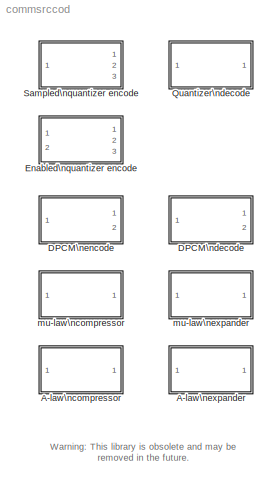
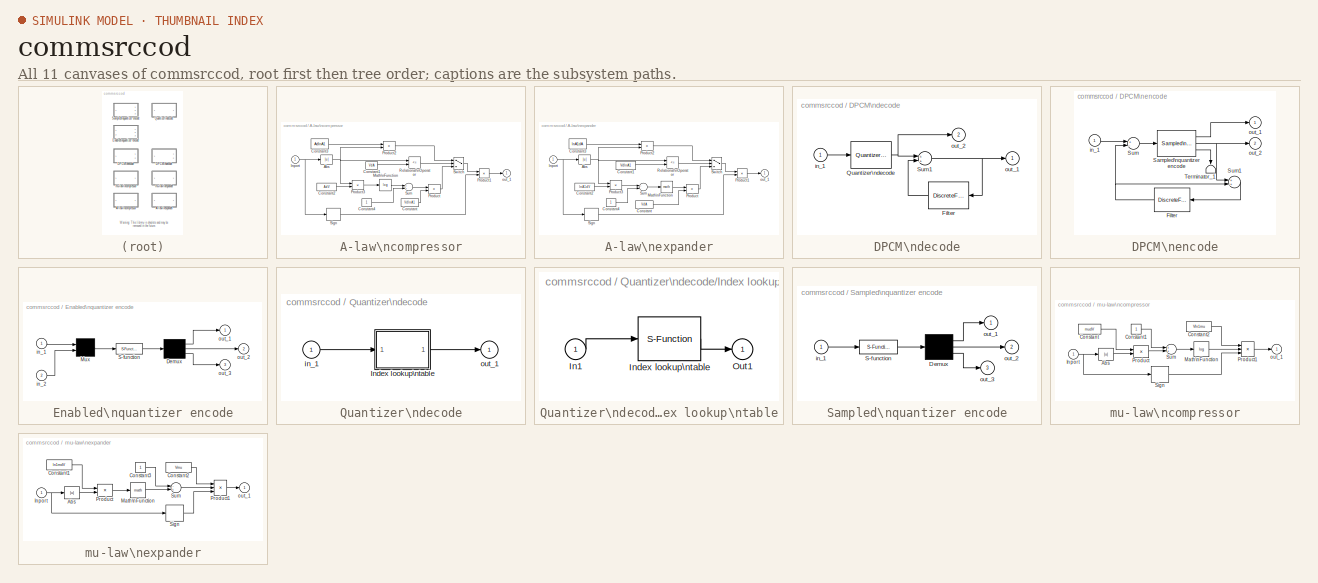
[diagram: thumbnail index - all 11 canvases of the model, root first then tree order]
MODEL commsrccod
KIND library
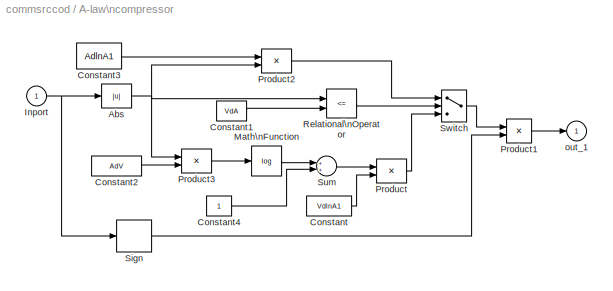
BLOCK [SubSystem] A-law\ncompressor
  MaskCallbackString = |
  MaskDescription = Compress the input signal using A-law compressor. The A-law compressor uses logarithm computation.
  MaskDisplay = disp('A-law\\ncompressor')
  MaskEnableString = on,on
  MaskHelp = This block processes a vector signal. The output has the same length as the input signal. The prevailing value for A is A=87.6.
  MaskIconFrame = on
  MaskIconOpaque = on
  MaskIconRotate = none
  MaskIconUnits = autoscale
  MaskInitialization = lnA1=log(A)+1;AdlnA1=A/lnA1;VdlnA1=V/lnA1;VdA=V/A;AdV=A/V;
  MaskPromptString = A value:|Peak signal magnitude:
  MaskStyleString = edit,edit
  MaskToolTipString = on,on
  MaskTunableValueString = on,on
  MaskType = A-law compressor
  MaskValueString = 87.6|1
  MaskVarAliasString = ,
  MaskVariables = A=@1;V=@2;
  MaskVisibilityString = on,on
  Ports = [1, 1]
  TreatAsAtomicUnit = off
BLOCK [Abs] A-law\ncompressor/Abs
BLOCK [Constant] A-law\ncompressor/Constant
  Value = VdlnA1
BLOCK [Constant] A-law\ncompressor/Constant1
  Value = VdA
BLOCK [Constant] A-law\ncompressor/Constant2
  Value = AdV
BLOCK [Constant] A-law\ncompressor/Constant3
  Value = AdlnA1
BLOCK [Constant] A-law\ncompressor/Constant4
BLOCK [Inport] A-law\ncompressor/Inport
BLOCK [Math] A-law\ncompressor/Math\nFunction
  Operator = log
  Ports = [1, 1]
BLOCK [Product] A-law\ncompressor/Product
  Ports = [2, 1]
BLOCK [Product] A-law\ncompressor/Product1
  Ports = [2, 1]
BLOCK [Product] A-law\ncompressor/Product2
  Ports = [2, 1]
BLOCK [Product] A-law\ncompressor/Product3
  Ports = [2, 1]
BLOCK [RelationalOperator] A-law\ncompressor/Relational\nOperator
  Operator = <=
BLOCK [Signum] A-law\ncompressor/Sign
BLOCK [Sum] A-law\ncompressor/Sum
  Ports = [2, 1]
BLOCK [Switch] A-law\ncompressor/Switch
  Threshold = .2
BLOCK [Outport] A-law\ncompressor/out_1
  InitialOutput = 0
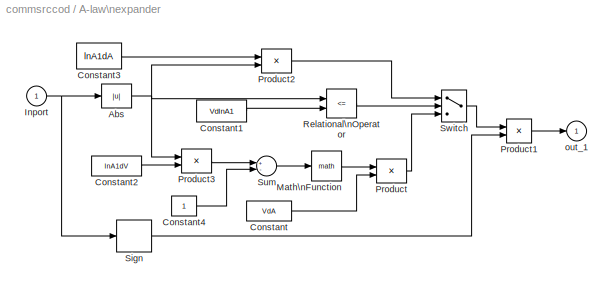
BLOCK [SubSystem] A-law\nexpander
  MaskCallbackString = |
  MaskDescription = Inverse computation of A-law compressor.
  MaskDisplay = disp('A-law\\nexpander')
  MaskEnableString = on,on
  MaskHelp = This block reverses the computation with A-law compressor. The prevailing value for A is A=87.6.
  MaskIconFrame = on
  MaskIconOpaque = on
  MaskIconRotate = none
  MaskIconUnits = autoscale
  MaskInitialization = lnA1=log(A)+1;VdlnA1=V/lnA1;lnA1dA=lnA1/A;lnA1dV=lnA1/V;VdA=V/A;
  MaskPromptString = A value:|Signal peak magnitude:
  MaskStyleString = edit,edit
  MaskToolTipString = on,on
  MaskTunableValueString = on,on
  MaskType = A-law expander
  MaskValueString = 87.6|1
  MaskVarAliasString = ,
  MaskVariables = A=@1;V=@2;
  MaskVisibilityString = on,on
  Ports = [1, 1]
  TreatAsAtomicUnit = off
BLOCK [Abs] A-law\nexpander/Abs
BLOCK [Constant] A-law\nexpander/Constant
  Value = VdA
BLOCK [Constant] A-law\nexpander/Constant1
  Value = VdlnA1
BLOCK [Constant] A-law\nexpander/Constant2
  Value = lnA1dV
BLOCK [Constant] A-law\nexpander/Constant3
  Value = lnA1dA
BLOCK [Constant] A-law\nexpander/Constant4
BLOCK [Inport] A-law\nexpander/Inport
BLOCK [Math] A-law\nexpander/Math\nFunction
  Ports = [1, 1]
BLOCK [Product] A-law\nexpander/Product
  Ports = [2, 1]
BLOCK [Product] A-law\nexpander/Product1
  Ports = [2, 1]
BLOCK [Product] A-law\nexpander/Product2
  Ports = [2, 1]
BLOCK [Product] A-law\nexpander/Product3
  Ports = [2, 1]
BLOCK [RelationalOperator] A-law\nexpander/Relational\nOperator
  Operator = <=
BLOCK [Signum] A-law\nexpander/Sign
BLOCK [Sum] A-law\nexpander/Sum
  Inputs = +-
  Ports = [2, 1]
BLOCK [Switch] A-law\nexpander/Switch
  Threshold = .2
BLOCK [Outport] A-law\nexpander/out_1
  InitialOutput = 0
BLOCK [SubSystem] DPCM\ndecode
  MaskCallbackString = |||
  MaskDescription = Input the DPCM coded index. Output DPCM decodes to the 1st outport and quantization decode to the 2nd outport.
  MaskDisplay = disp('DPCM\\ndecode')
  MaskEnableString = on,on,on,on
  MaskHelp = This block recovers the source code using the DPCM decode method. The parameters in this block should match the parameters in the DPCM encoder.
  MaskIconFrame = on
  MaskIconOpaque = on
  MaskIconRotate = none
  MaskIconUnits = autoscale
  MaskPromptString = Predictor transfer function numerator:|Predictor transfer function denominator:|Quantization codebook:|Sample time (sec):
  MaskStyleString = edit,edit,edit,edit
  MaskToolTipString = on,on,on,on
  MaskTunableValueString = on,on,on,on
  MaskType = DPCM decode
  MaskValueString = [0 .9963]|1|[-.0848 -.029 .0298 .0853]|.1
  MaskVarAliasString = ,,,
  MaskVariables = num=@1;den=@2;codebook=@3;sample_time=@4;
  MaskVisibilityString = on,on,on,on
  Ports = [1, 2]
  TreatAsAtomicUnit = off
BLOCK [DiscreteFilter] DPCM\ndecode/Filter
  Denominator = den
  MaskIconFrame = on
  MaskIconOpaque = on
  MaskIconRotate = none
  MaskIconUnits = autoscale
  Numerator = num
  SampleTime = sample_time
BLOCK [Reference] DPCM\ndecode/Quantizer\ndecode  REF=commsrccod/Quantizer\ndecode
  Ports = [1, 1]
  SourceBlock = commsrccod/Quantizer\ndecode
  SourceType = Scalar quantization decode
  codebook = codebook
BLOCK [Sum] DPCM\ndecode/Sum1
  Ports = [2, 1]
BLOCK [Inport] DPCM\ndecode/in_1
BLOCK [Outport] DPCM\ndecode/out_1
  InitialOutput = 0
BLOCK [Outport] DPCM\ndecode/out_2
  InitialOutput = 0
  Port = 2
BLOCK [SubSystem] DPCM\nencode
  MaskCallbackString = ||||
  MaskDescription = Output the DPCM encoded index to the 1st outport and the quantization recovered value to the 2nd outport.
  MaskDisplay = disp('DPCM\\nencode')
  MaskEnableString = on,on,on,on,on
  MaskHelp = The 1st outport outputs the index of the predictive error. The 2nd outport outputs the predictive error. Use the DPCMOPT function for the FIR filter training. A delta modulation is a special case with the numerator as [0,x], the denominator as 1 for the\\npredictor.
  MaskIconFrame = on
  MaskIconOpaque = on
  MaskIconRotate = none
  MaskIconUnits = autoscale
  MaskPromptString = Predictor numerator:|Predictor denominator:|Quantization partition:|Quantization codebook:|Sample time (sec):
  MaskStyleString = edit,edit,edit,edit,edit
  MaskToolTipString = on,on,on,on,on
  MaskTunableValueString = on,on,on,on,on
  MaskType = DPCM encode
  MaskValueString = [0 .9963]|1|[-.0569 .0004 .0576]|[-.0848 -.029 .0298 .0853]|.1
  MaskVarAliasString = ,,,,
  MaskVariables = num=@1;den=@2;partition=@3;codebook=@4;sample_time=@5;
  MaskVisibilityString = on,on,on,on,on
  Ports = [1, 2]
  TreatAsAtomicUnit = off
BLOCK [DiscreteFilter] DPCM\nencode/Filter
  Denominator = den
  MaskIconFrame = on
  MaskIconOpaque = on
  MaskIconRotate = none
  MaskIconUnits = autoscale
  Numerator = num
  SampleTime = sample_time
BLOCK [Reference] DPCM\nencode/Sampled\nquantizer encode  REF=commsrccod/Sampled\nquantizer encode
  Ports = [1, 3]
  SourceBlock = commsrccod/Sampled\nquantizer encode
  SourceType = Scalar quantization encode
  codebook = codebook
  n = 1
  partition = partition
  sample_time = sample_time
BLOCK [Sum] DPCM\nencode/Sum
  Inputs = +-
  Ports = [2, 1]
BLOCK [Sum] DPCM\nencode/Sum1
  Ports = [2, 1]
BLOCK [Terminator] DPCM\nencode/Terminator_1
BLOCK [Inport] DPCM\nencode/in_1
BLOCK [Outport] DPCM\nencode/out_1
  InitialOutput = 0
BLOCK [Outport] DPCM\nencode/out_2
  InitialOutput = 0
  Port = 2
BLOCK [SubSystem] Enabled\nquantizer encode
  MaskCallbackString = ||
  MaskDescription = Triggered by 2nd input signal, this block quantize an analog signal to (1)digital signal, (2)quantization value, (3)distortion.
  MaskDisplay = plot(0,0,100,100,x,y);disp('Quantizer')
  MaskEnableString = on,on,on
  MaskHelp = This block quantizes the first inport signal into quantization index (1st outport), quantized value (2nd outport), and distortion (3rd outport). This block uses scalar quantization method. The input signal to the 1st inport can be a vector. The operation of this block is enabled by the non-zero signal from the second inport. When the block is not enabled, the block keeps the last output value.
  MaskIconFrame = on
  MaskIconOpaque = on
  MaskIconRotate = none
  MaskIconUnits = autoscale
  MaskInitialization = [x,y]=trigicon(0,25,get_param(gcb,'orientation'),1);\n
  MaskPromptString = Quantization partition:|Quantization codebook:|Input signal vector length:
  MaskStyleString = edit,edit,edit
  MaskToolTipString = on,on,on
  MaskTunableValueString = on,on,on
  MaskType = Scalar quantization encode
  MaskValueString = [-.75 -.25 .25 .75]|[-.825 -.5 0 .5 .825]|2
  MaskVarAliasString = ,,
  MaskVariables = partition=@1;codebook=@2;n=@3;
  MaskVisibilityString = on,on,on
  Ports = [2, 3]
  TreatAsAtomicUnit = off
BLOCK [Demux] Enabled\nquantizer encode/Demux
  Outputs = [n n n]
  Ports = [1, 3]
BLOCK [Mux] Enabled\nquantizer encode/Mux
  Inputs = [n 1]
  Ports = [2, 1]
BLOCK [S-Function] Enabled\nquantizer encode/S-function
  FunctionName = simquan
  Parameters = n, partition, codebook
  Ports = [1, 1]
BLOCK [Inport] Enabled\nquantizer encode/in_1
BLOCK [Inport] Enabled\nquantizer encode/in_2
  Port = 2
BLOCK [Outport] Enabled\nquantizer encode/out_1
  InitialOutput = 0
BLOCK [Outport] Enabled\nquantizer encode/out_2
  InitialOutput = 0
  Port = 2
BLOCK [Outport] Enabled\nquantizer encode/out_3
  InitialOutput = 0
  Port = 3
BLOCK [SubSystem] Quantizer\ndecode
  MaskDescription = Output the value in the given codebook based on the input index value.
  MaskDisplay = disp('Quantizer\\ndecode')
  MaskEnableString = on
  MaskHelp = This block takes the quantized index as input and outputs the quantization value. The output vector size is the same as the input vector size. Inputs 0, 1, ..., N-1 lead to CK(1), CK(2), .. CK(N) output.
  MaskIconFrame = on
  MaskIconOpaque = on
  MaskIconRotate = none
  MaskIconUnits = autoscale
  MaskPromptString = Quantization codebook:
  MaskStyleString = edit
  MaskToolTipString = on
  MaskTunableValueString = on
  MaskType = Scalar quantization decode
  MaskValueString = [-.825 -.5 0, .5 .825]
  MaskVariables = codebook=@1;
  MaskVisibilityString = on
  Ports = [1, 1]
  TreatAsAtomicUnit = off
BLOCK [SubSystem] Quantizer\ndecode/Index lookup\ntable
  MaskDescription = Output one of the values in the look-up table.
  MaskDisplay = disp('Index\\nLookup tb')
  MaskEnableString = on
  MaskHelp = When codebook is a matrix, the block input can only be a scalar. The block output the row with the column index provided in the input. When codebook is a vector, the block output the same length as the input vector. The output is one of the values in codebook with the index provided by the input.
  MaskIconFrame = on
  MaskIconOpaque = on
  MaskIconRotate = none
  MaskIconUnits = autoscale
  MaskInitialization = codebook=@1;
  MaskPromptString = Codebook:
  MaskStyleString = edit
  MaskToolTipString = on
  MaskTunableValueString = on
  MaskType = No-intepret Lookup table
  MaskValueString = codebook
  MaskVisibilityString = on
  Ports = [1, 1]
  TreatAsAtomicUnit = off
BLOCK [Inport] Quantizer\ndecode/Index lookup\ntable/In1
BLOCK [S-Function] Quantizer\ndecode/Index lookup\ntable/Index lookup\ntable
  FunctionName = indxtabl
  Parameters = codebook
  Ports = [1, 1]
BLOCK [Outport] Quantizer\ndecode/Index lookup\ntable/Out1
  InitialOutput = 0
BLOCK [Inport] Quantizer\ndecode/in_1
BLOCK [Outport] Quantizer\ndecode/out_1
  InitialOutput = 0
BLOCK [SubSystem] Sampled\nquantizer encode
  MaskCallbackString = |||
  MaskDescription = Quantize an analog signal to (1)digital signal, (2)quantization value, and (3)distortion at every sample time point.
  MaskDisplay = disp('Scalar\\nquantizer')
  MaskEnableString = on,on,on,on
  MaskHelp = This block converts the input analog signal to digital signal (1st outport) with the quantized value (2nd outport), and distortion (3rd outport) at every sample point. The input signa can be a vector. When the sample time is a two-elements vector, the second element is the offset value. The length of the partition is one less than the length of codebook. Use LLOYDS to optimize the partition and co...<+7ch>
  MaskIconFrame = on
  MaskIconOpaque = on
  MaskIconRotate = none
  MaskIconUnits = autoscale
  MaskPromptString = Quantization partition:|Quantization codebook:|Input signal vector length:|Sample time (sec):
  MaskStyleString = edit,edit,edit,edit
  MaskToolTipString = on,on,on,on
  MaskTunableValueString = on,on,on,on
  MaskType = Scalar quantization encode
  MaskValueString = [-.75 -.25 .25 .75]|[-.825 -.5 0 .5 .825]|2|.1
  MaskVarAliasString = ,,,
  MaskVariables = partition=@1;codebook=@2;n=@3;sample_time=@4;
  MaskVisibilityString = on,on,on,on
  Ports = [1, 3]
  TreatAsAtomicUnit = off
BLOCK [Demux] Sampled\nquantizer encode/Demux
  Outputs = [n n n]
  Ports = [1, 3]
BLOCK [S-Function] Sampled\nquantizer encode/S-function
  FunctionName = simquans
  Parameters = n, partition, codebook,sample_time
  Ports = [1, 1]
BLOCK [Inport] Sampled\nquantizer encode/in_1
BLOCK [Outport] Sampled\nquantizer encode/out_1
  InitialOutput = 0
BLOCK [Outport] Sampled\nquantizer encode/out_2
  InitialOutput = 0
  Port = 2
BLOCK [Outport] Sampled\nquantizer encode/out_3
  InitialOutput = 0
  Port = 3
BLOCK [SubSystem] mu-law\ncompressor
  MaskCallbackString = |
  MaskDescription = Compress the input signal using mu-law compressor. The mu-law compressor uses logarithm computation.
  MaskDisplay = disp('mu-law\\ncompressor')
  MaskEnableString = on,on
  MaskHelp = This block processes a vector signal. The output has the same length as the input signal. The prevailing value is mu=255.
  MaskIconFrame = on
  MaskIconOpaque = on
  MaskIconRotate = none
  MaskIconUnits = autoscale
  MaskInitialization = mudV=mu/V;Vln1mu=V/log(1+mu);
  MaskPromptString = mu value:|Peak signal magnitude:
  MaskStyleString = edit,edit
  MaskToolTipString = on,on
  MaskTunableValueString = on,on
  MaskType = mu-law compressor
  MaskValueString = 255|1
  MaskVarAliasString = ,
  MaskVariables = mu=@1;V=@2;
  MaskVisibilityString = on,on
  Ports = [1, 1]
  TreatAsAtomicUnit = off
BLOCK [Abs] mu-law\ncompressor/Abs
BLOCK [Constant] mu-law\ncompressor/Constant
  Value = mudV
BLOCK [Constant] mu-law\ncompressor/Constant1
BLOCK [Constant] mu-law\ncompressor/Constant2
  Value = Vln1mu
BLOCK [Inport] mu-law\ncompressor/Inport
BLOCK [Math] mu-law\ncompressor/Math\nFunction
  Operator = log
  Ports = [1, 1]
BLOCK [Product] mu-law\ncompressor/Product
  Ports = [2, 1]
BLOCK [Product] mu-law\ncompressor/Product1
  Inputs = 3
  Ports = [3, 1]
BLOCK [Signum] mu-law\ncompressor/Sign
BLOCK [Sum] mu-law\ncompressor/Sum
  Ports = [2, 1]
BLOCK [Outport] mu-law\ncompressor/out_1
  InitialOutput = 0
BLOCK [SubSystem] mu-law\nexpander
  MaskCallbackString = |
  MaskDescription = Inverse computation of mu-law compressor.
  MaskDisplay = disp('mu-law\\nexpander')
  MaskEnableString = on,on
  MaskHelp = This block reverses the computation with mu-law compressor. The prevailing value for mu is mu=255.
  MaskIconFrame = on
  MaskIconOpaque = on
  MaskIconRotate = none
  MaskIconUnits = autoscale
  MaskInitialization = Vmu=V/mu;ln1mdV=log(1+mu)/V;
  MaskPromptString = mu value:|Signal peak magnitude:
  MaskStyleString = edit,edit
  MaskToolTipString = on,on
  MaskTunableValueString = on,on
  MaskType = mu-law expander
  MaskValueString = 255|1
  MaskVarAliasString = ,
  MaskVariables = mu=@1;V=@2;
  MaskVisibilityString = on,on
  Ports = [1, 1]
  TreatAsAtomicUnit = off
BLOCK [Abs] mu-law\nexpander/Abs
BLOCK [Constant] mu-law\nexpander/Constant1
  Value = ln1mdV
BLOCK [Constant] mu-law\nexpander/Constant2
  Value = Vmu
BLOCK [Constant] mu-law\nexpander/Constant3
BLOCK [Inport] mu-law\nexpander/Inport
BLOCK [Math] mu-law\nexpander/Math\nFunction
  Ports = [1, 1]
BLOCK [Product] mu-law\nexpander/Product
  Ports = [2, 1]
BLOCK [Product] mu-law\nexpander/Product1
  Inputs = 3
  Ports = [3, 1]
BLOCK [Signum] mu-law\nexpander/Sign
BLOCK [Sum] mu-law\nexpander/Sum
  Inputs = -+
  Ports = [2, 1]
BLOCK [Outport] mu-law\nexpander/out_1
  InitialOutput = 0
ANNOTATION (root): Warning: This library is obsolete and may be\nremoved in the future.
NET A-law\ncompressor/Abs:1 -> A-law\ncompressor/Product2:2, A-law\ncompressor/Product3:1, A-law\ncompressor/Relational\nOperator:1
LINE A-law\ncompressor/Constant1:1 -> A-law\ncompressor/Relational\nOperator:2
LINE A-law\ncompressor/Constant2:1 -> A-law\ncompressor/Product3:2
LINE A-law\ncompressor/Constant3:1 -> A-law\ncompressor/Product2:1
LINE A-law\ncompressor/Constant4:1 -> A-law\ncompressor/Sum:2
LINE A-law\ncompressor/Constant:1 -> A-law\ncompressor/Product:2
NET A-law\ncompressor/Inport:1 -> A-law\ncompressor/Abs:1, A-law\ncompressor/Sign:1
LINE A-law\ncompressor/Math\nFunction:1 -> A-law\ncompressor/Sum:1
LINE A-law\ncompressor/Product1:1 -> A-law\ncompressor/out_1:1
LINE A-law\ncompressor/Product2:1 -> A-law\ncompressor/Switch:1
LINE A-law\ncompressor/Product3:1 -> A-law\ncompressor/Math\nFunction:1
LINE A-law\ncompressor/Product:1 -> A-law\ncompressor/Switch:3
LINE A-law\ncompressor/Relational\nOperator:1 -> A-law\ncompressor/Switch:2
LINE A-law\ncompressor/Sign:1 -> A-law\ncompressor/Product1:2
LINE A-law\ncompressor/Sum:1 -> A-law\ncompressor/Product:1
LINE A-law\ncompressor/Switch:1 -> A-law\ncompressor/Product1:1
NET A-law\nexpander/Abs:1 -> A-law\nexpander/Product2:2, A-law\nexpander/Product3:1, A-law\nexpander/Relational\nOperator:1
LINE A-law\nexpander/Constant1:1 -> A-law\nexpander/Relational\nOperator:2
LINE A-law\nexpander/Constant2:1 -> A-law\nexpander/Product3:2
LINE A-law\nexpander/Constant3:1 -> A-law\nexpander/Product2:1
LINE A-law\nexpander/Constant4:1 -> A-law\nexpander/Sum:2
LINE A-law\nexpander/Constant:1 -> A-law\nexpander/Product:2
NET A-law\nexpander/Inport:1 -> A-law\nexpander/Abs:1, A-law\nexpander/Sign:1
LINE A-law\nexpander/Math\nFunction:1 -> A-law\nexpander/Product:1
LINE A-law\nexpander/Product1:1 -> A-law\nexpander/out_1:1
LINE A-law\nexpander/Product2:1 -> A-law\nexpander/Switch:1
LINE A-law\nexpander/Product3:1 -> A-law\nexpander/Sum:1
LINE A-law\nexpander/Product:1 -> A-law\nexpander/Switch:3
LINE A-law\nexpander/Relational\nOperator:1 -> A-law\nexpander/Switch:2
LINE A-law\nexpander/Sign:1 -> A-law\nexpander/Product1:2
LINE A-law\nexpander/Sum:1 -> A-law\nexpander/Math\nFunction:1
LINE A-law\nexpander/Switch:1 -> A-law\nexpander/Product1:1
LINE DPCM\ndecode/Filter:1 -> DPCM\ndecode/Sum1:2
NET DPCM\ndecode/Quantizer\ndecode:1 -> DPCM\ndecode/Sum1:1, DPCM\ndecode/out_2:1
NET DPCM\ndecode/Sum1:1 -> DPCM\ndecode/Filter:1, DPCM\ndecode/out_1:1
LINE DPCM\ndecode/in_1:1 -> DPCM\ndecode/Quantizer\ndecode:1
NET DPCM\nencode/Filter:1 -> DPCM\nencode/Sum1:2, DPCM\nencode/Sum:2
LINE DPCM\nencode/Sampled\nquantizer encode:1 -> DPCM\nencode/out_1:1
NET DPCM\nencode/Sampled\nquantizer encode:2 -> DPCM\nencode/Sum1:1, DPCM\nencode/out_2:1
LINE DPCM\nencode/Sampled\nquantizer encode:3 -> DPCM\nencode/Terminator_1:1
LINE DPCM\nencode/Sum1:1 -> DPCM\nencode/Filter:1
LINE DPCM\nencode/Sum:1 -> DPCM\nencode/Sampled\nquantizer encode:1
LINE DPCM\nencode/in_1:1 -> DPCM\nencode/Sum:1
LINE Enabled\nquantizer encode/Demux:1 -> Enabled\nquantizer encode/out_1:1
LINE Enabled\nquantizer encode/Demux:2 -> Enabled\nquantizer encode/out_2:1
LINE Enabled\nquantizer encode/Demux:3 -> Enabled\nquantizer encode/out_3:1
LINE Enabled\nquantizer encode/Mux:1 -> Enabled\nquantizer encode/S-function:1
LINE Enabled\nquantizer encode/S-function:1 -> Enabled\nquantizer encode/Demux:1
LINE Enabled\nquantizer encode/in_1:1 -> Enabled\nquantizer encode/Mux:1
LINE Enabled\nquantizer encode/in_2:1 -> Enabled\nquantizer encode/Mux:2
LINE Quantizer\ndecode/Index lookup\ntable/In1:1 -> Quantizer\ndecode/Index lookup\ntable/Index lookup\ntable:1
LINE Quantizer\ndecode/Index lookup\ntable/Index lookup\ntable:1 -> Quantizer\ndecode/Index lookup\ntable/Out1:1
LINE Quantizer\ndecode/Index lookup\ntable:1 -> Quantizer\ndecode/out_1:1
LINE Quantizer\ndecode/in_1:1 -> Quantizer\ndecode/Index lookup\ntable:1
LINE Sampled\nquantizer encode/Demux:1 -> Sampled\nquantizer encode/out_1:1
LINE Sampled\nquantizer encode/Demux:2 -> Sampled\nquantizer encode/out_2:1
LINE Sampled\nquantizer encode/Demux:3 -> Sampled\nquantizer encode/out_3:1
LINE Sampled\nquantizer encode/S-function:1 -> Sampled\nquantizer encode/Demux:1
LINE Sampled\nquantizer encode/in_1:1 -> Sampled\nquantizer encode/S-function:1
LINE mu-law\ncompressor/Abs:1 -> mu-law\ncompressor/Product:2
LINE mu-law\ncompressor/Constant1:1 -> mu-law\ncompressor/Sum:1
LINE mu-law\ncompressor/Constant2:1 -> mu-law\ncompressor/Product1:1
LINE mu-law\ncompressor/Constant:1 -> mu-law\ncompressor/Product:1
NET mu-law\ncompressor/Inport:1 -> mu-law\ncompressor/Abs:1, mu-law\ncompressor/Sign:1
LINE mu-law\ncompressor/Math\nFunction:1 -> mu-law\ncompressor/Product1:2
LINE mu-law\ncompressor/Product1:1 -> mu-law\ncompressor/out_1:1
LINE mu-law\ncompressor/Product:1 -> mu-law\ncompressor/Sum:2
LINE mu-law\ncompressor/Sign:1 -> mu-law\ncompressor/Product1:3
LINE mu-law\ncompressor/Sum:1 -> mu-law\ncompressor/Math\nFunction:1
LINE mu-law\nexpander/Abs:1 -> mu-law\nexpander/Product:2
LINE mu-law\nexpander/Constant1:1 -> mu-law\nexpander/Product:1
LINE mu-law\nexpander/Constant2:1 -> mu-law\nexpander/Product1:1
LINE mu-law\nexpander/Constant3:1 -> mu-law\nexpander/Sum:1
NET mu-law\nexpander/Inport:1 -> mu-law\nexpander/Abs:1, mu-law\nexpander/Sign:1
LINE mu-law\nexpander/Math\nFunction:1 -> mu-law\nexpander/Sum:2
LINE mu-law\nexpander/Product1:1 -> mu-law\nexpander/out_1:1
LINE mu-law\nexpander/Product:1 -> mu-law\nexpander/Math\nFunction:1
LINE mu-law\nexpander/Sign:1 -> mu-law\nexpander/Product1:3
LINE mu-law\nexpander/Sum:1 -> mu-law\nexpander/Product1:2
note: NET lines group one-source signal fan-out (src -> all destinations, sorted); 1:1 wires keep LINE
